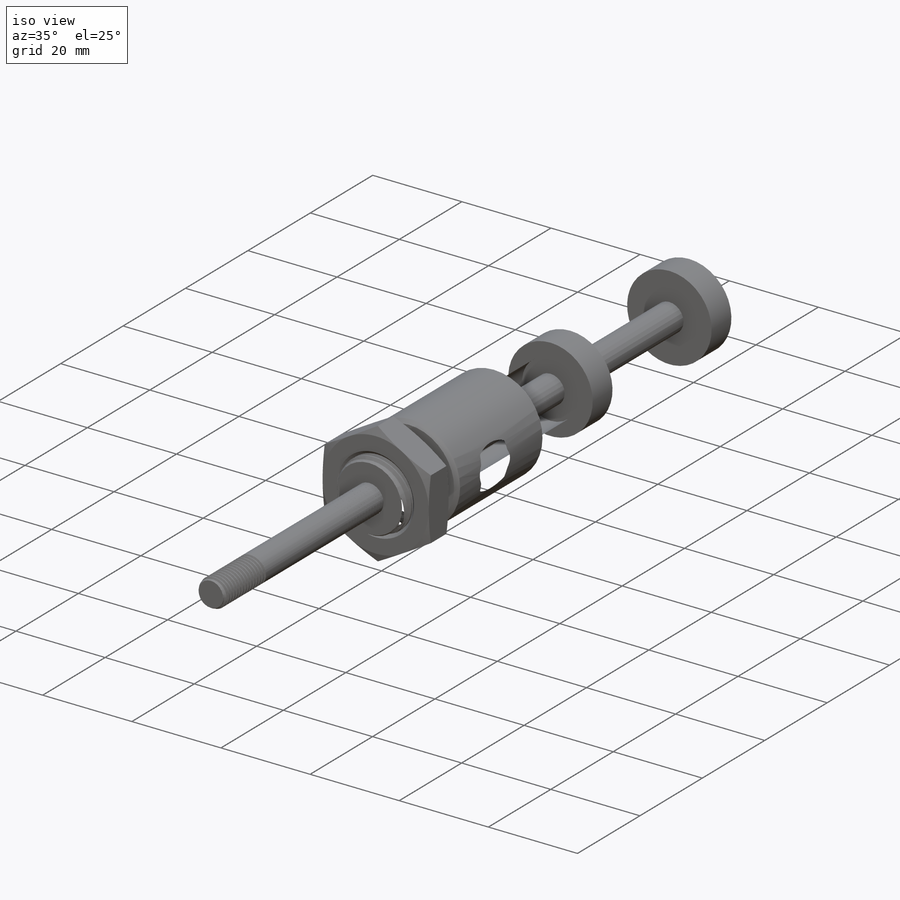
[diagram: iso view]
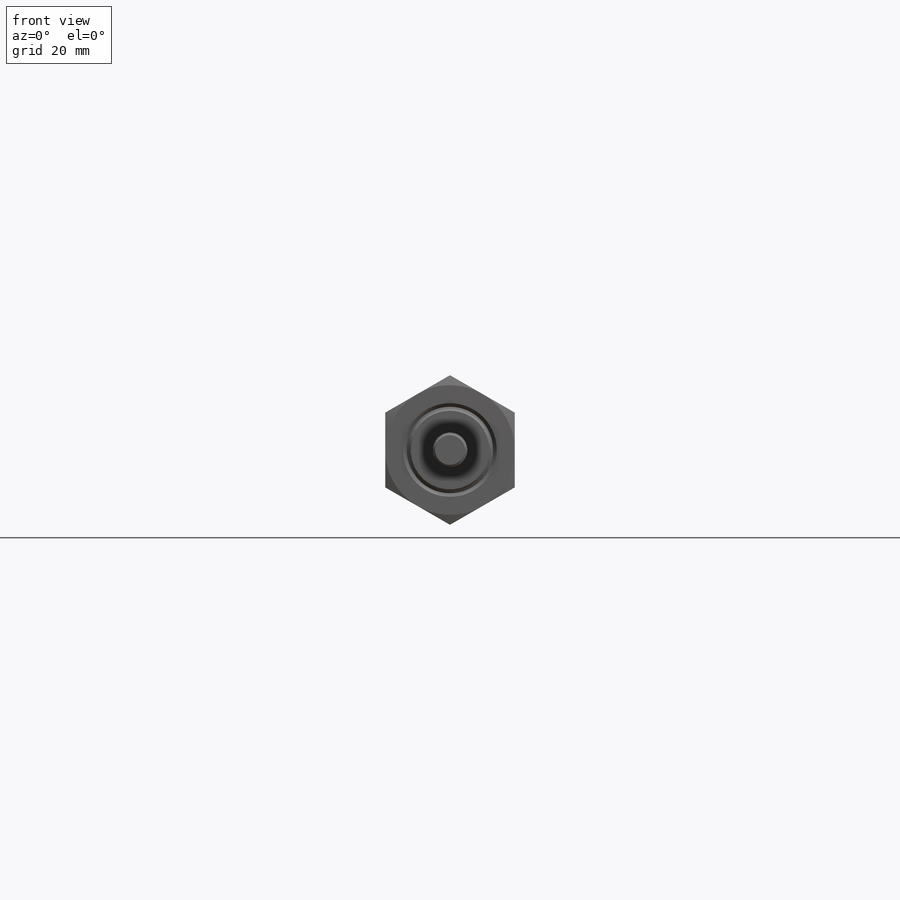
[diagram: front view]
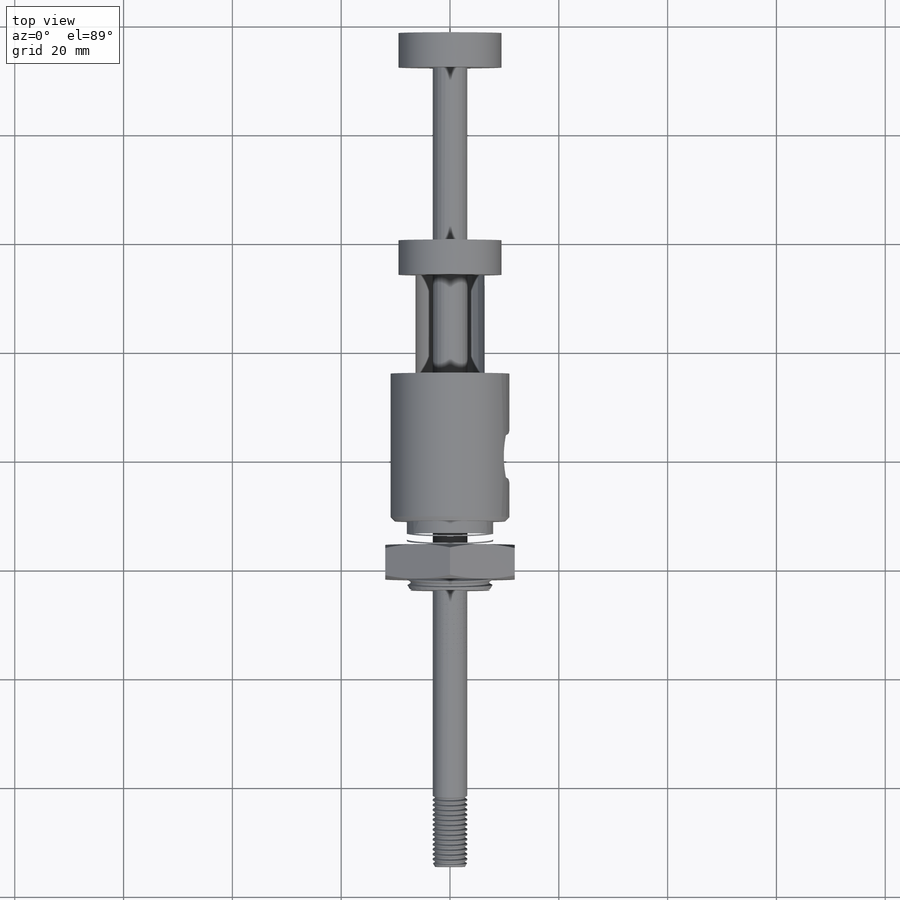
[diagram: top view]
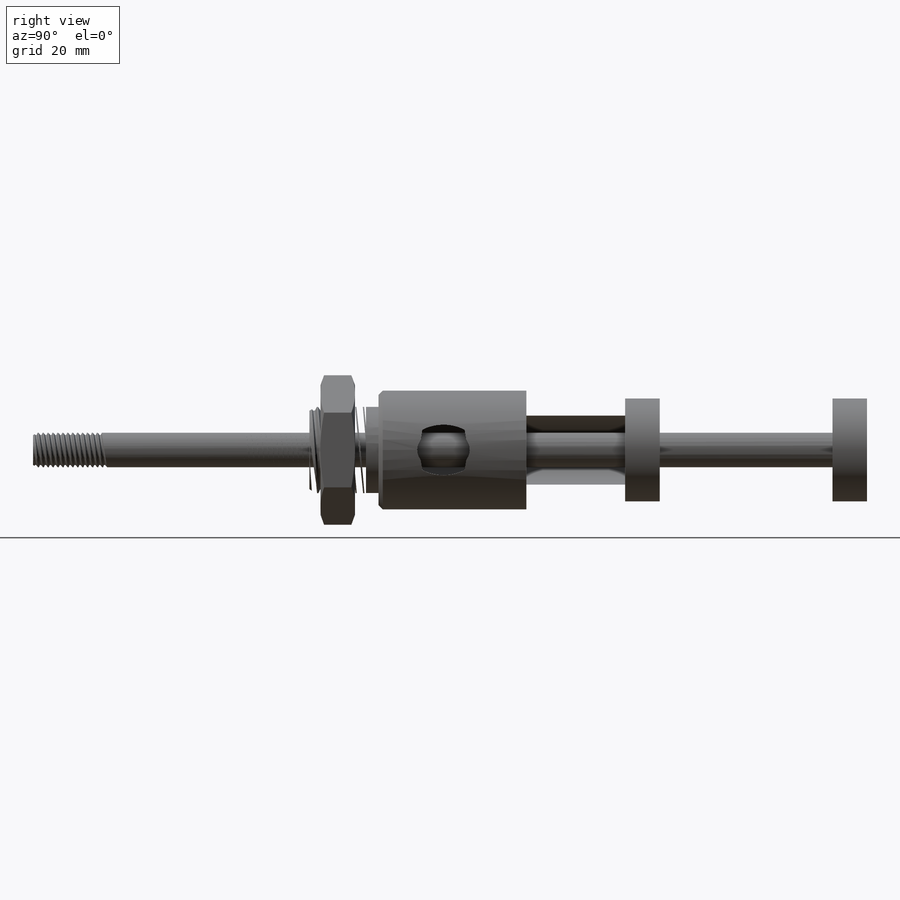
[diagram: right view]
SOLIDWORKS PART (.sldprt)
format: sldprt  version: not decoded by parser v0  size: 1,441,280 bytes
history: native  units: mm
features: sketch x17, cut_revolve x10, revolve x4, pattern_linear x4, plane x4, extrude x2, material x1, cut_extrude x1, chamfer x1 (+13 scaffold rows collapsed)
feature tree (57):
  scaffold x13  (default folders/planes/origin — collapsed)
  material  "Material <not specified>"
  sketch  "Sketch1"  dims[c1.J Flat=15.875mm c1.E OD=21.844mm c1.K Flat Depth=15.748mm c1.RM Pilot=19.0246mm c1.G Pilot Length=16.002mm c2.RM Pilot=15.875mm c2.Shaft Dia=6.35mm c2.D Wrench Flats=6.35mm c2.C Flat Length=6.35mm c2.A Thread Length=12.7mm c2.Total Length=165.862mm c2.D1=0.0254mm c2.D2=90.0deg c3.Total Length=153.162mm c3.C Flat Length=9.525mm c3.D2=90.0deg c3.G Pilot Length=12.7mm c3.V Pilot Length=2.286mm c3.D1=19.05mm c3.A Thread Length=12.7mm]
  revolve  "Revolve1"  Angle=360deg
  sketch  "Sketch58"
  cut_revolve  "Cut-Revolve25"  Angle=360deg
  sketch  "Sketch59"  dims[D1=9.525mm]
  cut_extrude  "Cut-Extrude3"  [1 undecoded]
  chamfer  "Chamfer1"  Distance=0.7874mm Angle=45deg
  sketch  "Sketch4"
  revolve  "Revolve2"  Angle=360deg
  sketch  "Sketch5"  dims[c1.D1=~0.176389mm c1.D2=~0.352778mm c1.Thread Pitch=~1.411111mm c1.D4=~1.839336mm c2.D4=60.0deg c2.D5=~1.411111mm]
  cut_revolve  "Cut-Revolve2"  Angle=360deg
  sketch  "Sketch6"  dims[c1.D1=~2.105576mm c2.D1=60.0deg]
  cut_revolve  "Cut-Revolve3"  Angle=360deg
  pattern_linear  "LPattern2"  Count1=2 Count2=9 Spacing1=1.411111mm Spacing2=1.411111mm
  sketch  "Sketch53"  dims[V Pilot Dia=2.286mm]
  revolve  "Revolve4"  Angle=360deg
  sketch  "Sketch62"  dims[c1.D1=~1.006395mm c2.D1=60.0deg c2.D2=~0.352778mm c2.D3=~0.176389mm c2.D4=~1.411111mm c2.D5=~1.411111mm]
  cut_revolve  "Cut-Revolve26"  Angle=360deg
  pattern_linear  "LPattern5"  Count1=11 Count2=1 Spacing1=1.411111mm Spacing2=50mm
  sketch  "Sketch60"  dims[D2=6.35mm D1=7.112mm]
  extrude  "Extrude2"  Depth=19.05mm
  sketch  "Sketch7"  dims[c1.Bore Dia=19.05mm c1.Piston Dia=11.1125mm c1.Stroke=152.4mm c1.D4=3.175mm c1.D5=38.1mm c1.D1=0.0254mm c1.D2=12.7mm c1.D3=6.35mm c2.Bore Dia=19.05mm c2.Stroke=190.5mm c2.D3=90.0deg c3.Stroke=38.1mm c3.D3=~2.580827mm c4.D3=45.0deg c4.D5=6.35mm c4.D6=15.875mm c4.D2=6.35mm c4.D7=28.575mm c4.D1=0.0254mm]
  cut_revolve  "Cut-Revolve5"  Angle=360deg
  sketch  "Sketch8"  dims[c1.D1=0.0508mm c1.D2=6.35mm c1.D3=~0.79375mm c2.D3=45.0deg]
  revolve  "Revolve3"  Angle=360deg
  sketch  "Sketch10"  dims[c1.D1=~0.113393mm c1.D2=~0.226786mm c1.Shaft Thread Pitch=~0.907143mm c1.D4=~0.907143mm c1.D5=~1.492597mm c2.D5=60.0deg]
  cut_revolve  "Cut-Revolve6"  Angle=360deg
  sketch  "Sketch11"  dims[c1.D1=~1.971795mm c2.D1=30.0deg]
  cut_revolve  "Cut-Revolve7"  Angle=360deg
  pattern_linear  "LPattern3"  Count1=2 Count2=14 Spacing1=0.907143mm Spacing2=0.907143mm
  pattern_linear  "LPattern4"  Count1=2 Count2=1 Spacing1=38.1mm Spacing2=1.5875mm
  plane  "Plane4"  Offset=7.112mm
  plane  "Plane6"
  sketch  "Sketch13"  dims[c1.D1=~16.540476mm c2.D1=60.0deg c2.E0=9.2202mm c2.Thread Pitch=~0.940741mm c2.D4=~0.177469mm c2.Thread Taper=3.58deg c2.D5=~0.078395mm c2.D2=~0.031044mm c2.D3=~0.035865mm c2.L2 Thread Engagement=10.2108mm c2.L4 Thread Length=15.113mm c2.ID=102.2604mm c2.Pipe OD=114.3mm c2.Overall Length=304.8mm c3.D5=33.02mm c3.D6=6.0198mm c3.L4 Thread Length=11.43mm]
  cut_revolve  "Cut-Revolve22"  Angle=360deg
  plane  "Plane7"  Offset=24.638mm
  sketch  "Sketch64"  dims[c1.D1=~16.540476mm c2.D1=60.0deg c2.E0=12.1158mm c2.Thread Pitch=~0.940741mm c2.D4=~0.177469mm c2.Thread Taper=3.58deg c2.D5=~0.078395mm c2.D2=~0.046567mm c2.D3=~0.053797mm c2.L2 Thread Engagement=10.2108mm c2.L4 Thread Length=15.113mm c2.ID=102.2604mm c2.Pipe OD=114.3mm c2.Overall Length=304.8mm c3.D5=33.02mm c3.D6=6.0198mm c3.L4 Thread Length=11.43mm c3.D4=9.2202mm]
  cut_revolve  "Cut-Revolve27"  Angle=360deg
  plane  "Plane2"
  sketch  "Sketch54"  dims[Nut Hex=23.8125mm]
  extrude  "Extrude1"  Depth=6.35mm Nut Height=6.35mm
  sketch  "Sketch55"  dims[c1.D1=~2.577315mm c2.D1=20.0deg c2.D2=23.8125mm c2.D3=~0.535834mm c3.D3=45.0deg]
  cut_revolve  "Cut-Revolve24"  Angle=360deg
decode coverage: 36 of 39 modeling features carry decoded parameters
note: ~ marks probable driven/reference dimensions
note: 1 parameter value undecoded
note: suppression state not decoded; provenance and decode notes live in map.json
